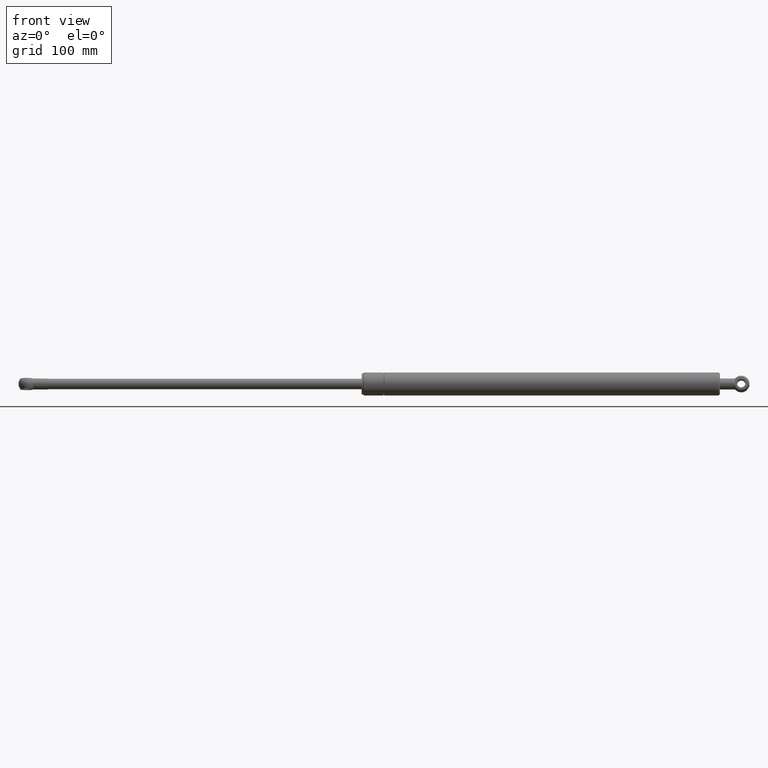
[diagram: clean part render]
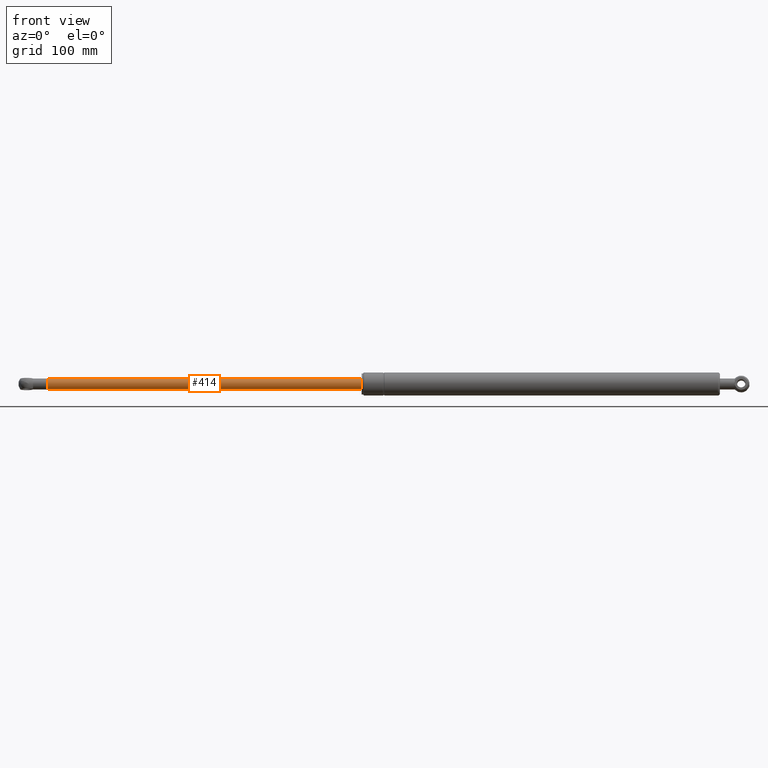
[diagram: same view with one face highlighted and labeled with its STEP entity id]
A machine part, front view. The second image highlights one B-rep face of the part: STEP entity #414.
In plain terms, the highlighted cylindrical surface (bore or boss wall) has radius 5 mm, axis along (-1, 0, -0).
Its self-contained STEP definition (entity closure, byte-faithful):
#91=FACE_BOUND('',#195,.T.);
#110=CYLINDRICAL_SURFACE('',#484,5.00000000000002);
#140=FACE_OUTER_BOUND('',#194,.T.);
#194=EDGE_LOOP('',(#368));
#195=EDGE_LOOP('',(#369));
#236=CIRCLE('',#483,5.);
#237=CIRCLE('',#485,5.00000000000003);
#268=VERTEX_POINT('',#756);
#269=VERTEX_POINT('',#759);
#304=EDGE_CURVE('',#268,#268,#236,.T.);
#305=EDGE_CURVE('',#269,#269,#237,.T.);
#368=ORIENTED_EDGE('',*,*,#305,.F.);
#369=ORIENTED_EDGE('',*,*,#304,.T.);
#414=ADVANCED_FACE('',(#140,#91),#110,.T.);
#483=AXIS2_PLACEMENT_3D('',#757,#618,#619);
#484=AXIS2_PLACEMENT_3D('',#758,#620,#621);
#485=AXIS2_PLACEMENT_3D('',#760,#622,#623);
#618=DIRECTION('center_axis',(-1.,0.,0.));
#619=DIRECTION('ref_axis',(0.,0.,1.));
#620=DIRECTION('center_axis',(-1.,0.,0.));
#621=DIRECTION('ref_axis',(0.,0.,1.));
#622=DIRECTION('center_axis',(-1.,0.,0.));
#623=DIRECTION('ref_axis',(0.,0.,1.));
#756=CARTESIAN_POINT('',(298.5,0.,5.));
#757=CARTESIAN_POINT('Origin',(298.5,0.,0.));
#758=CARTESIAN_POINT('Origin',(149.25,0.,0.));
#759=CARTESIAN_POINT('',(7.1959436245814E-32,0.,5.00000000000003));
#760=CARTESIAN_POINT('Origin',(0.,0.,0.));